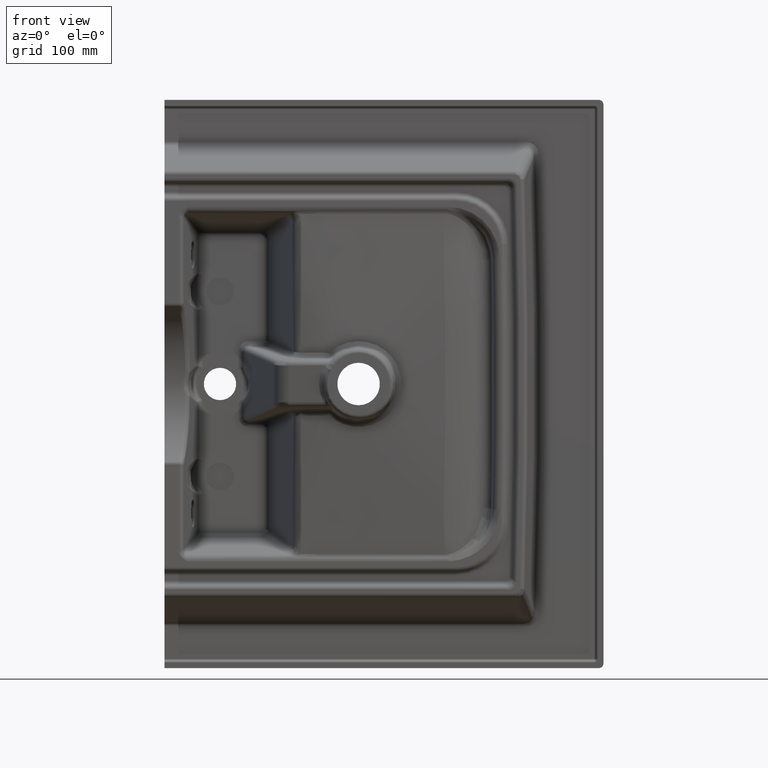
[diagram: clean part render]
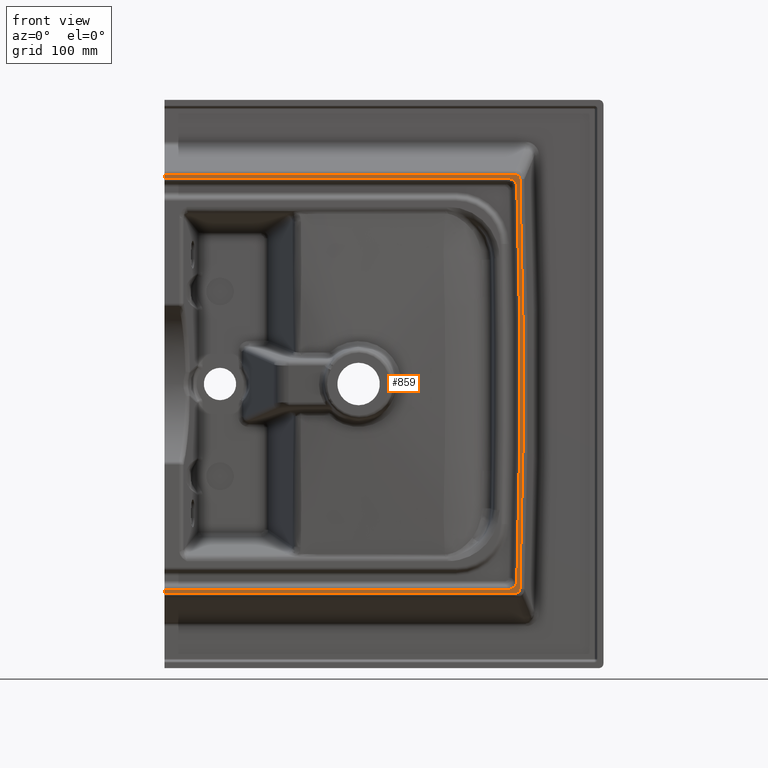
[diagram: same view with one face highlighted and labeled with its STEP entity id]
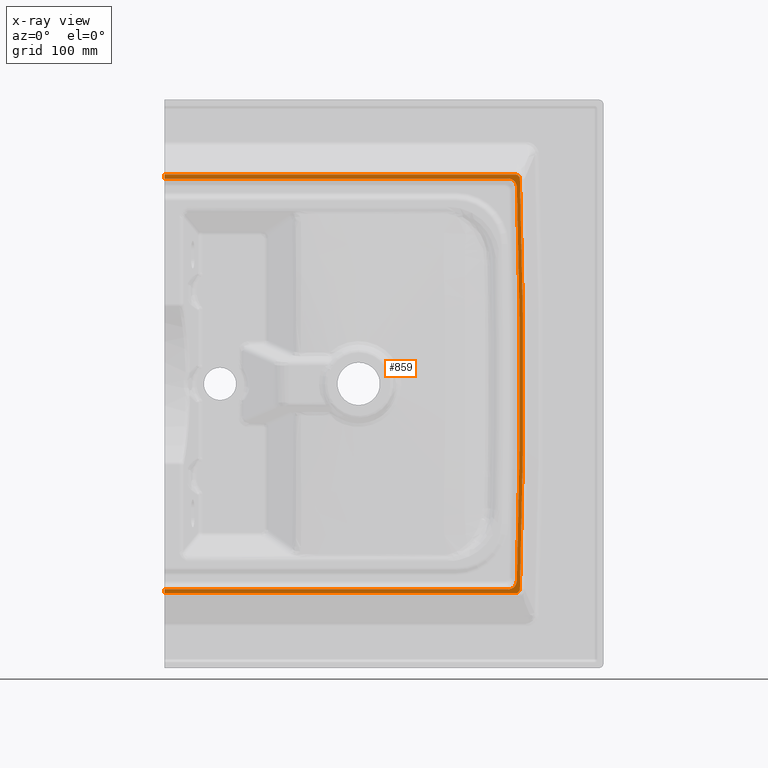
[diagram: x-ray of the same camera — body ghosted, the highlighted face saturated]
A machine part, front view. The second image highlights one B-rep face of the part: STEP entity #859.
The next image is the same camera in x-ray: the body ghosted, the highlighted face saturated — about 0% of this face is hidden behind the body in this view.
In plain terms, the highlighted planar face has unit normal (0, -1, 0).
Its self-contained STEP definition (entity closure, byte-faithful):
#229=PLANE('',#4402);
#349=B_SPLINE_CURVE_WITH_KNOTS('',3,(#8177,#8178,#8179,#8180,#8181,#8182,
#8183,#8184,#8185,#8186),.UNSPECIFIED.,.F.,.F.,(4,2,2,2,4),(0.,0.25,0.5,
0.75,1.),.UNSPECIFIED.);
#350=B_SPLINE_CURVE_WITH_KNOTS('',3,(#8195,#8196,#8197,#8198,#8199,#8200),
 .UNSPECIFIED.,.F.,.F.,(4,2,4),(0.,0.5,1.),.UNSPECIFIED.);
#351=B_SPLINE_CURVE_WITH_KNOTS('',3,(#8204,#8205,#8206,#8207,#8208,#8209),
 .UNSPECIFIED.,.F.,.F.,(4,2,4),(0.,0.5,1.),.UNSPECIFIED.);
#352=B_SPLINE_CURVE_WITH_KNOTS('',3,(#8217,#8218,#8219,#8220,#8221,#8222,
#8223,#8224,#8225,#8226),.UNSPECIFIED.,.F.,.F.,(4,2,2,2,4),(0.,0.25,0.5,
0.75,1.),.UNSPECIFIED.);
#511=LINE('',#8189,#694);
#512=LINE('',#8191,#695);
#513=LINE('',#8193,#696);
#514=LINE('',#8211,#697);
#515=LINE('',#8213,#698);
#516=LINE('',#8215,#699);
#694=VECTOR('',#4947,1.);
#695=VECTOR('',#4948,1.);
#696=VECTOR('',#4949,1.);
#697=VECTOR('',#4952,1.);
#698=VECTOR('',#4953,1.);
#699=VECTOR('',#4954,1.);
#859=ADVANCED_FACE('',(#1225),#229,.T.);
#1225=FACE_OUTER_BOUND('',#1487,.T.);
#1487=EDGE_LOOP('',(#2118,#2119,#2120,#2121,#2122,#2123,#2124,#2125,#2126,
#2127,#2128,#2129));
#1782=CIRCLE('',#4400,6744.52110534479);
#1783=CIRCLE('',#4401,6740.93860684573);
#2118=ORIENTED_EDGE('',*,*,#3762,.T.);
#2119=ORIENTED_EDGE('',*,*,#3763,.T.);
#2120=ORIENTED_EDGE('',*,*,#3764,.T.);
#2121=ORIENTED_EDGE('',*,*,#3765,.T.);
#2122=ORIENTED_EDGE('',*,*,#3766,.T.);
#2123=ORIENTED_EDGE('',*,*,#3767,.T.);
#2124=ORIENTED_EDGE('',*,*,#3768,.T.);
#2125=ORIENTED_EDGE('',*,*,#3769,.T.);
#2126=ORIENTED_EDGE('',*,*,#3770,.T.);
#2127=ORIENTED_EDGE('',*,*,#3771,.T.);
#2128=ORIENTED_EDGE('',*,*,#3772,.T.);
#2129=ORIENTED_EDGE('',*,*,#3773,.T.);
#3365=VERTEX_POINT('',#8187);
#3366=VERTEX_POINT('',#8188);
#3367=VERTEX_POINT('',#8190);
#3368=VERTEX_POINT('',#8192);
#3369=VERTEX_POINT('',#8194);
#3370=VERTEX_POINT('',#8201);
#3371=VERTEX_POINT('',#8203);
#3372=VERTEX_POINT('',#8210);
#3373=VERTEX_POINT('',#8212);
#3374=VERTEX_POINT('',#8214);
#3375=VERTEX_POINT('',#8216);
#3376=VERTEX_POINT('',#8227);
#3762=EDGE_CURVE('',#3365,#3366,#349,.T.);
#3763=EDGE_CURVE('',#3366,#3367,#511,.T.);
#3764=EDGE_CURVE('',#3367,#3368,#512,.T.);
#3765=EDGE_CURVE('',#3368,#3369,#513,.T.);
#3766=EDGE_CURVE('',#3369,#3370,#350,.T.);
#3767=EDGE_CURVE('',#3370,#3371,#1782,.T.);
#3768=EDGE_CURVE('',#3371,#3372,#351,.T.);
#3769=EDGE_CURVE('',#3372,#3373,#514,.T.);
#3770=EDGE_CURVE('',#3373,#3374,#515,.T.);
#3771=EDGE_CURVE('',#3374,#3375,#516,.T.);
#3772=EDGE_CURVE('',#3375,#3376,#352,.T.);
#3773=EDGE_CURVE('',#3376,#3365,#1783,.T.);
#4400=AXIS2_PLACEMENT_3D('',#8202,#4950,#4951);
#4401=AXIS2_PLACEMENT_3D('',#8228,#4955,#4956);
#4402=AXIS2_PLACEMENT_3D('',#8229,#4957,#4958);
#4947=DIRECTION('',(-1.,0.,-7.13576567134379E-017));
#4948=DIRECTION('',(0.,0.,-1.));
#4949=DIRECTION('',(1.,0.,0.));
#4950=DIRECTION('',(0.,-1.,0.));
#4951=DIRECTION('',(0.,0.,-1.));
#4952=DIRECTION('',(-1.,0.,0.));
#4953=DIRECTION('',(0.,0.,-1.));
#4954=DIRECTION('',(1.,0.,1.42715313426876E-016));
#4955=DIRECTION('',(0.,1.,0.));
#4956=DIRECTION('',(0.,0.,-1.));
#4957=DIRECTION('',(0.,-1.,0.));
#4958=DIRECTION('',(0.,0.,-1.));
#8177=CARTESIAN_POINT('',(143.799639976145,-110.,-212.142387694199));
#8178=CARTESIAN_POINT('',(143.755769189679,-110.,-213.535715064139));
#8179=CARTESIAN_POINT('',(143.523938103728,-110.,-214.925349055002));
#8180=CARTESIAN_POINT('',(142.553447404077,-110.,-217.514865343268));
#8181=CARTESIAN_POINT('',(141.799427462439,-110.,-218.717991817565));
#8182=CARTESIAN_POINT('',(139.814793425353,-110.,-220.63618261781));
#8183=CARTESIAN_POINT('',(138.597199265463,-110.,-221.344063608337));
#8184=CARTESIAN_POINT('',(135.972943557128,-110.,-222.230667160278));
#8185=CARTESIAN_POINT('',(134.589772326723,-110.,-222.415191710375));
#8186=CARTESIAN_POINT('',(133.198291991366,-110.,-222.415191710376));
#8187=CARTESIAN_POINT('',(143.799639976147,-110.,-212.142387694199));
#8188=CARTESIAN_POINT('',(133.198291991366,-110.,-222.415191710376));
#8189=CARTESIAN_POINT('',(-237.5,-110.,-222.415191710376));
#8190=CARTESIAN_POINT('',(-237.5,-110.,-222.415191710376));
#8191=CARTESIAN_POINT('',(-237.5,-110.,-160.));
#8192=CARTESIAN_POINT('',(-237.5,-110.,-226.644318523368));
#8193=CARTESIAN_POINT('',(141.76270937261,-110.,-226.644318523368));
#8194=CARTESIAN_POINT('',(142.224688422871,-110.,-226.644318523367));
#8195=CARTESIAN_POINT('',(142.224688422871,-110.,-226.644318523367));
#8196=CARTESIAN_POINT('',(143.501803444259,-110.,-226.644318523366));
#8197=CARTESIAN_POINT('',(144.750266099039,-110.,-226.114544595108));
#8198=CARTESIAN_POINT('',(146.518296304838,-110.,-224.315582605586));
#8199=CARTESIAN_POINT('',(147.03138364487,-110.,-223.066864871973));
#8200=CARTESIAN_POINT('',(147.073348597363,-110.,-221.791430427592));
#8201=CARTESIAN_POINT('',(147.073348597357,-110.,-221.791430427592));
#8202=CARTESIAN_POINT('',(-6593.8,-110.,0.));
#8203=CARTESIAN_POINT('',(147.073348597363,-110.,221.791430427594));
#8204=CARTESIAN_POINT('',(147.073348597363,-110.,221.791430427594));
#8205=CARTESIAN_POINT('',(147.031361657083,-110.,223.06753314344));
#8206=CARTESIAN_POINT('',(146.524800578546,-110.,224.307290820715));
#8207=CARTESIAN_POINT('',(144.750042011239,-110.,226.116440412377));
#8208=CARTESIAN_POINT('',(143.502981653605,-110.,226.644318523366));
#8209=CARTESIAN_POINT('',(142.224688422871,-110.,226.644318523367));
#8210=CARTESIAN_POINT('',(142.224688422871,-110.,226.644318523368));
#8211=CARTESIAN_POINT('',(-237.5,-110.,226.644318523368));
#8212=CARTESIAN_POINT('',(-237.5,-110.,226.644318523368));
#8213=CARTESIAN_POINT('',(-237.5,-110.,260.));
#8214=CARTESIAN_POINT('',(-237.5,-110.,222.415191710376));
#8215=CARTESIAN_POINT('',(134.617223500966,-110.,222.415191710376));
#8216=CARTESIAN_POINT('',(133.19829199138,-110.,222.415191710376));
#8217=CARTESIAN_POINT('',(133.19829199138,-110.,222.415191710376));
#8218=CARTESIAN_POINT('',(134.592309983373,-110.,222.415191710374));
#8219=CARTESIAN_POINT('',(135.988562414769,-110.,222.22724968827));
#8220=CARTESIAN_POINT('',(138.607343807596,-110.,221.338758552735));
#8221=CARTESIAN_POINT('',(139.833590191178,-110.,220.622954288886));
#8222=CARTESIAN_POINT('',(141.813241272466,-110.,218.69961940107));
#8223=CARTESIAN_POINT('',(142.559067094588,-110.,217.504896989907));
#8224=CARTESIAN_POINT('',(143.527845877511,-110.,214.90984610734));
#8225=CARTESIAN_POINT('',(143.755848986299,-110.,213.533180739562));
#8226=CARTESIAN_POINT('',(143.799639976147,-110.,212.142387694199));
#8227=CARTESIAN_POINT('',(143.799639976148,-110.,212.142387694199));
#8228=CARTESIAN_POINT('',(-6593.8,-110.,0.));
#8229=CARTESIAN_POINT('',(237.5,-110.,-307.5));